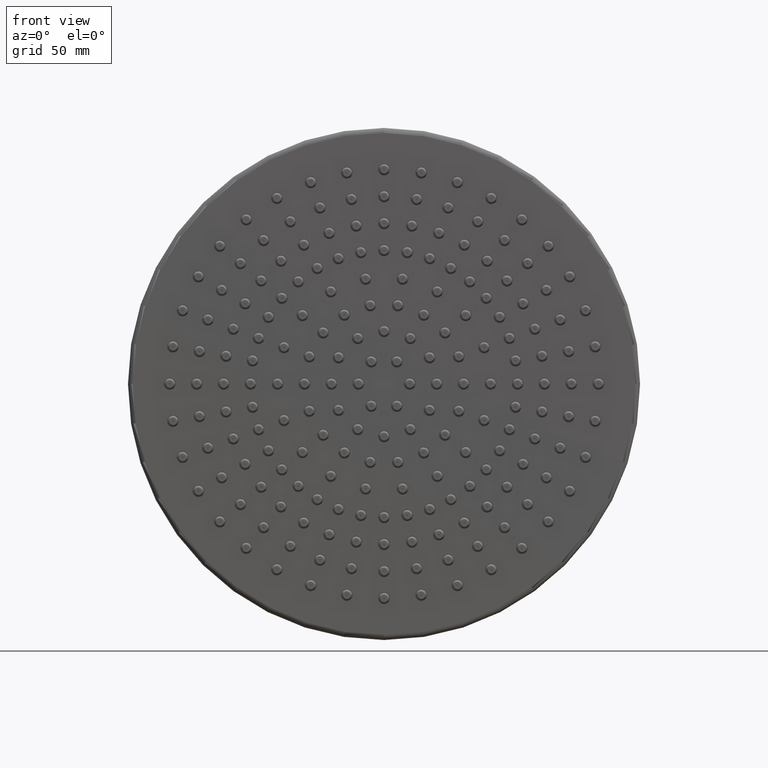
[diagram: clean part render]
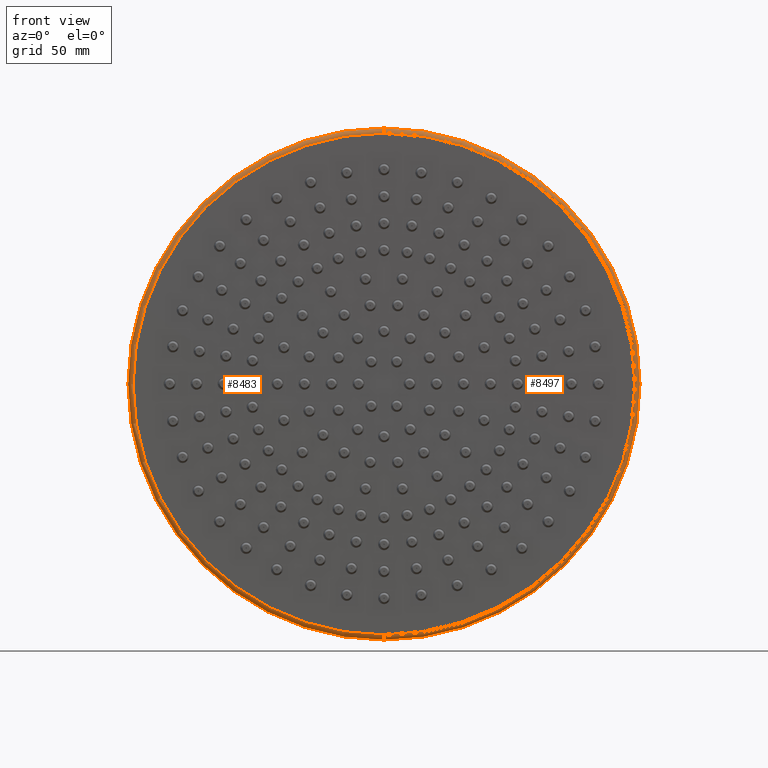
[diagram: same view with one multi-face feature highlighted, each face labeled with its STEP entity id]
A machine part, front view. The highlighted faces form ONE feature: a constant-radius fillet chain: 2 tangent blend faces with common blend radius 3 mm. The faces share edges in the B-rep.
Their STEP definitions:
[1] entity #8497 (Torus):
#7=CARTESIAN_POINT('',(0.E0,0.E0,0.E0));
#8=DIRECTION('',(0.E0,1.E0,0.E0));
#9=DIRECTION('',(1.456238927726E-3,0.E0,9.999989396835E-1));
#10=AXIS2_PLACEMENT_3D('',#7,#8,#9);
#2002=CARTESIAN_POINT('',(-2.007005672766E-13,3.E0,1.47E2));
#2003=DIRECTION('',(1.E0,0.E0,0.E0));
#2004=DIRECTION('',(0.E0,0.E0,1.E0));
#2005=AXIS2_PLACEMENT_3D('',#2002,#2003,#2004);
#2007=CARTESIAN_POINT('',(0.E0,0.E0,0.E0));
#2008=DIRECTION('',(0.E0,-1.E0,0.E0));
#2009=DIRECTION('',(1.456238927726E-3,0.E0,9.999989396835E-1));
#2010=AXIS2_PLACEMENT_3D('',#2007,#2008,#2009);
#2012=CARTESIAN_POINT('',(0.E0,3.E0,0.E0));
#2013=DIRECTION('',(0.E0,1.E0,0.E0));
#2014=DIRECTION('',(0.E0,0.E0,1.E0));
#2015=AXIS2_PLACEMENT_3D('',#2012,#2013,#2014);
#2017=CARTESIAN_POINT('',(2.007005672766E-13,3.E0,-1.47E2));
#2018=DIRECTION('',(-1.E0,0.E0,0.E0));
#2019=DIRECTION('',(0.E0,0.E0,-1.E0));
#2020=AXIS2_PLACEMENT_3D('',#2017,#2018,#2019);
#5653=CARTESIAN_POINT('',(0.E0,0.E0,1.47E2));
#5655=VERTEX_POINT('',#5653);
#5656=CARTESIAN_POINT('',(-1.074140776325E-14,0.E0,-1.47E2));
#5657=VERTEX_POINT('',#5656);
#5658=CARTESIAN_POINT('',(2.140671223758E-1,0.E0,1.469998441335E2));
#5659=VERTEX_POINT('',#5658);
#6452=CARTESIAN_POINT('',(2.047962494034E-13,3.E0,-1.5E2));
#6453=VERTEX_POINT('',#6452);
#6454=CARTESIAN_POINT('',(2.480838239228E-13,3.E0,1.5E2));
#6455=VERTEX_POINT('',#6454);
#8484=CARTESIAN_POINT('',(0.E0,3.E0,0.E0));
#8485=DIRECTION('',(0.E0,1.E0,0.E0));
#8486=DIRECTION('',(-1.456239485308E-3,0.E0,-9.999989396827E-1));
#8487=AXIS2_PLACEMENT_3D('',#8484,#8485,#8486);
#8488=TOROIDAL_SURFACE('',#8487,1.47E2,3.E0);
#8489=ORIENTED_EDGE('',*,*,#7275,.F.);
#8490=ORIENTED_EDGE('',*,*,#7273,.T.);
#8491=ORIENTED_EDGE('',*,*,#8479,.F.);
#8493=ORIENTED_EDGE('',*,*,#8492,.T.);
#8494=ORIENTED_EDGE('',*,*,#8475,.T.);
#8495=EDGE_LOOP('',(#8489,#8490,#8491,#8493,#8494));
#8496=FACE_OUTER_BOUND('',#8495,.F.);
#8497=ADVANCED_FACE('',(#8496),#8488,.T.);
#11=CIRCLE('',#10,1.47E2);
#2006=CIRCLE('',#2005,3.E0);
#2011=CIRCLE('',#2010,1.47E2);
#2016=CIRCLE('',#2015,1.5E2);
#2021=CIRCLE('',#2020,3.E0);
#7273=EDGE_CURVE('',#5659,#5655,#2011,.T.);
#7275=EDGE_CURVE('',#5659,#5657,#11,.T.);
#8475=EDGE_CURVE('',#6453,#5657,#2021,.T.);
#8479=EDGE_CURVE('',#6455,#5655,#2006,.T.);
#8492=EDGE_CURVE('',#6455,#6453,#2016,.T.);
[2] entity #8483 (Torus):
#2=CARTESIAN_POINT('',(0.E0,0.E0,0.E0));
#3=DIRECTION('',(0.E0,1.E0,0.E0));
#4=DIRECTION('',(-1.456238952235E-3,0.E0,-9.999989396835E-1));
#5=AXIS2_PLACEMENT_3D('',#2,#3,#4);
#1992=CARTESIAN_POINT('',(0.E0,0.E0,0.E0));
#1993=DIRECTION('',(0.E0,-1.E0,0.E0));
#1994=DIRECTION('',(-1.456238952235E-3,0.E0,-9.999989396835E-1));
#1995=AXIS2_PLACEMENT_3D('',#1992,#1993,#1994);
#1997=CARTESIAN_POINT('',(0.E0,3.E0,0.E0));
#1998=DIRECTION('',(0.E0,1.E0,0.E0));
#1999=DIRECTION('',(0.E0,0.E0,-1.E0));
#2000=AXIS2_PLACEMENT_3D('',#1997,#1998,#1999);
#2002=CARTESIAN_POINT('',(-2.007005672766E-13,3.E0,1.47E2));
#2003=DIRECTION('',(1.E0,0.E0,0.E0));
#2004=DIRECTION('',(0.E0,0.E0,1.E0));
#2005=AXIS2_PLACEMENT_3D('',#2002,#2003,#2004);
#2017=CARTESIAN_POINT('',(2.007005672766E-13,3.E0,-1.47E2));
#2018=DIRECTION('',(-1.E0,0.E0,0.E0));
#2019=DIRECTION('',(0.E0,0.E0,-1.E0));
#2020=AXIS2_PLACEMENT_3D('',#2017,#2018,#2019);
#5652=CARTESIAN_POINT('',(-2.140671259786E-1,0.E0,-1.469998441335E2));
#5653=CARTESIAN_POINT('',(0.E0,0.E0,1.47E2));
#5654=VERTEX_POINT('',#5652);
#5655=VERTEX_POINT('',#5653);
#5656=CARTESIAN_POINT('',(-1.074140776325E-14,0.E0,-1.47E2));
#5657=VERTEX_POINT('',#5656);
#6452=CARTESIAN_POINT('',(2.047962494034E-13,3.E0,-1.5E2));
#6453=VERTEX_POINT('',#6452);
#6454=CARTESIAN_POINT('',(2.480838239228E-13,3.E0,1.5E2));
#6455=VERTEX_POINT('',#6454);
#8468=CARTESIAN_POINT('',(0.E0,3.E0,0.E0));
#8469=DIRECTION('',(0.E0,1.E0,0.E0));
#8470=DIRECTION('',(1.456239485308E-3,0.E0,9.999989396827E-1));
#8471=AXIS2_PLACEMENT_3D('',#8468,#8469,#8470);
#8472=TOROIDAL_SURFACE('',#8471,1.47E2,3.E0);
#8473=ORIENTED_EDGE('',*,*,#7271,.F.);
#8474=ORIENTED_EDGE('',*,*,#7269,.T.);
#8476=ORIENTED_EDGE('',*,*,#8475,.F.);
#8478=ORIENTED_EDGE('',*,*,#8477,.T.);
#8480=ORIENTED_EDGE('',*,*,#8479,.T.);
#8481=EDGE_LOOP('',(#8473,#8474,#8476,#8478,#8480));
#8482=FACE_OUTER_BOUND('',#8481,.F.);
#8483=ADVANCED_FACE('',(#8482),#8472,.T.);
#6=CIRCLE('',#5,1.47E2);
#1996=CIRCLE('',#1995,1.47E2);
#2001=CIRCLE('',#2000,1.5E2);
#2006=CIRCLE('',#2005,3.E0);
#2021=CIRCLE('',#2020,3.E0);
#7269=EDGE_CURVE('',#5654,#5657,#1996,.T.);
#7271=EDGE_CURVE('',#5654,#5655,#6,.T.);
#8475=EDGE_CURVE('',#6453,#5657,#2021,.T.);
#8477=EDGE_CURVE('',#6453,#6455,#2001,.T.);
#8479=EDGE_CURVE('',#6455,#5655,#2006,.T.);